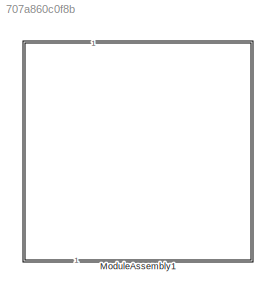
MODEL slx_707a860c0f8b
KIND library
CONFIG AbsTol = auto
CONFIG EnableMultiTasking = off
CONFIG FixedStep = auto
CONFIG MaxStep = auto
CONFIG MinStep = auto
CONFIG RelTol = 1e-3
CONFIG SampleTimeConstraint = Unconstrained
CONFIG SolverName = VariableStepAuto
CONFIG StartTime = 0.0
CONFIG StopTime = 10.0
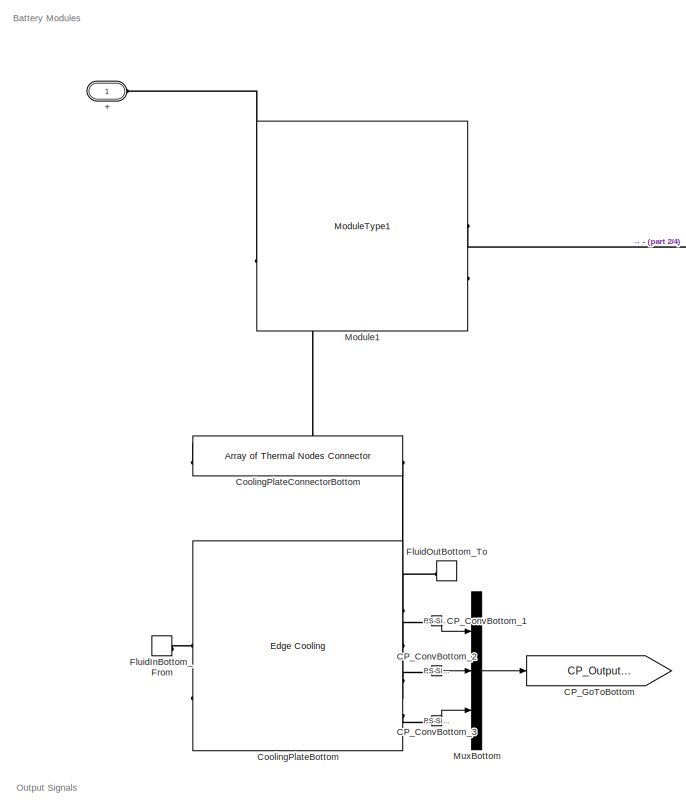
[diagram: ModuleAssembly1 - part 1/4, middle left region]
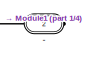
[diagram: ModuleAssembly1 - part 2/4, top right region]
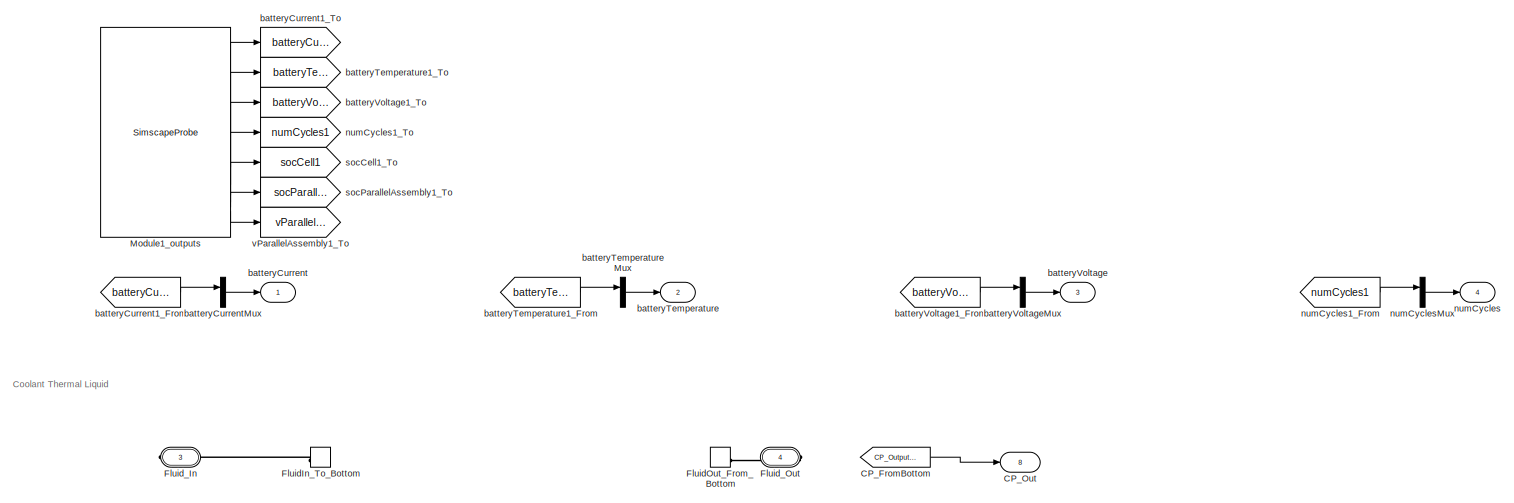
[diagram: ModuleAssembly1 - part 3/4, bottom left region]
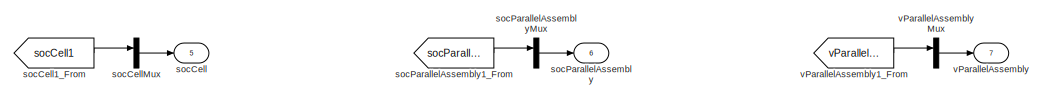
[diagram: ModuleAssembly1 - part 4/4, bottom right region]
BLOCK [SubSystem] ModuleAssembly1
  CopyFcn = battery_builder_rtmsupport('copyfcn',gcbh);
  LoadFcn = battery_builder_rtmsupport('loadfcn',gcbh);
  PortSchema = {"entries":[{"content":{"sides":[{"content":{"connectorIds":["LConn1"]},"type":"ConnectorPlacement.EquallySpacedRectSide","uuid":"5b9bd66e-6eb4-47f7-a339-4edb451c37cc"},{"content":{"connectorIds":["RConn1","RConn2","RConn3"],"side":"RIGHT"},"type":"ConnectorPlacement.EquallySpacedRectSide","uuid":"4e53519a-4f95-4811-a8d7-c955c8344f39"},{"content":{"side":"TOP"},"type":"ConnectorPlacement.EquallySp...<+444ch>
  PreCopyFcn = battery_builder_rtmsupport('precopyfcn',gcbh);
  PreDeleteFcn = battery_builder_rtmsupport('predeletefcn',gcbh);
BLOCK [PMIOPort] ModuleAssembly1/+
  Side = Left
BLOCK [PMIOPort] ModuleAssembly1/-
  Port = 2
  Side = Right
BLOCK [Reference] ModuleAssembly1/CP_ConvBottom_1  REF=nesl_utility/PS-Simulink
Converter
  SourceBlock = nesl_utility/PS-Simulink\nConverter
  SourceType = PS-Simulink\nConverter
BLOCK [Reference] ModuleAssembly1/CP_ConvBottom_2  REF=nesl_utility/PS-Simulink
Converter
  SourceBlock = nesl_utility/PS-Simulink\nConverter
  SourceType = PS-Simulink\nConverter
BLOCK [Reference] ModuleAssembly1/CP_ConvBottom_3  REF=nesl_utility/PS-Simulink
Converter
  SourceBlock = nesl_utility/PS-Simulink\nConverter
  SourceType = PS-Simulink\nConverter
BLOCK [From] ModuleAssembly1/CP_FromBottom
  GotoTag = CP_OutputsBottom
BLOCK [Goto] ModuleAssembly1/CP_GoToBottom
  GotoTag = CP_OutputsBottom
BLOCK [Outport] ModuleAssembly1/CP_Out
  Port = 8
BLOCK [Reference] ModuleAssembly1/CoolingPlateBottom  REF=batt_lib/Thermal/Edge Cooling
  SourceBlock = batt_lib/Thermal/Edge Cooling
  SourceType = Edge Cooling
BLOCK [Reference] ModuleAssembly1/CoolingPlateConnectorBottom  REF=batt_lib/Thermal/Array of Thermal
Nodes Connector
  SourceBlock = batt_lib/Thermal/Array of Thermal\nNodes Connector
  SourceType = Array of Thermal\nNodes Connector
BLOCK [ConnectionLabel] ModuleAssembly1/FluidInBottom_From
  Label = FluidIn_To_Bottom
BLOCK [ConnectionLabel] ModuleAssembly1/FluidIn_To_Bottom
  Label = FluidIn_To_Bottom
BLOCK [ConnectionLabel] ModuleAssembly1/FluidOutBottom_To
  Label = FluidOut_From_Bottom
BLOCK [ConnectionLabel] ModuleAssembly1/FluidOut_From_Bottom
  Label = FluidOut_From_Bottom
BLOCK [PMIOPort] ModuleAssembly1/Fluid_In
  ConnectionType = Connection: foundation.thermal_liquid.thermal_liquid
  Port = 3
  Side = Right
BLOCK [PMIOPort] ModuleAssembly1/Fluid_Out
  ConnectionType = Connection: foundation.thermal_liquid.thermal_liquid
  Port = 4
  Side = Right
BLOCK [Reference] ModuleAssembly1/Module1  REF=pouchPackExample_lib/Modules/ModuleType1
  SourceBlock = pouchPackExample_lib/Modules/ModuleType1
  SourceType = ModuleType1
BLOCK [SimscapeProbe] ModuleAssembly1/Module1_outputs
  BoundBlock = 2
  Variables = {"batteryCurrent":{"Unit":"A","PortLabel":"batteryCurrent","Probing":"ON"},"batteryTemperature":{"Unit":"K","PortLabel":"batteryTemperature","Probing":"ON"},"batteryVoltage":{"Unit":"V","PortLabel":"batteryVoltage","Probing":"ON"},"numCycles":{"Unit":"1","PortLabel":"numCycles","Probing":"ON"},"socCell":{"Unit":"1","PortLabel":"socCell","Probing":"ON"},"socParallelAssembly":{"Unit":"1","PortLabel"...<+119ch>
BLOCK [Mux] ModuleAssembly1/MuxBottom
  DisplayOption = bar
  Inputs = 3
BLOCK [Outport] ModuleAssembly1/batteryCurrent
BLOCK [From] ModuleAssembly1/batteryCurrent1_From
  GotoTag = batteryCurrent1
BLOCK [Goto] ModuleAssembly1/batteryCurrent1_To
  GotoTag = batteryCurrent1
BLOCK [Mux] ModuleAssembly1/batteryCurrentMux
  DisplayOption = bar
  Inputs = 1
BLOCK [Outport] ModuleAssembly1/batteryTemperature
  Port = 2
BLOCK [From] ModuleAssembly1/batteryTemperature1_From
  GotoTag = batteryTemperature1
BLOCK [Goto] ModuleAssembly1/batteryTemperature1_To
  GotoTag = batteryTemperature1
BLOCK [Mux] ModuleAssembly1/batteryTemperatureMux
  DisplayOption = bar
  Inputs = 1
BLOCK [Outport] ModuleAssembly1/batteryVoltage
  Port = 3
BLOCK [From] ModuleAssembly1/batteryVoltage1_From
  GotoTag = batteryVoltage1
BLOCK [Goto] ModuleAssembly1/batteryVoltage1_To
  GotoTag = batteryVoltage1
BLOCK [Mux] ModuleAssembly1/batteryVoltageMux
  DisplayOption = bar
  Inputs = 1
BLOCK [Outport] ModuleAssembly1/numCycles
  Port = 4
BLOCK [From] ModuleAssembly1/numCycles1_From
  GotoTag = numCycles1
BLOCK [Goto] ModuleAssembly1/numCycles1_To
  GotoTag = numCycles1
BLOCK [Mux] ModuleAssembly1/numCyclesMux
  DisplayOption = bar
  Inputs = 1
BLOCK [Outport] ModuleAssembly1/socCell
  Port = 5
BLOCK [From] ModuleAssembly1/socCell1_From
  GotoTag = socCell1
BLOCK [Goto] ModuleAssembly1/socCell1_To
  GotoTag = socCell1
BLOCK [Mux] ModuleAssembly1/socCellMux
  DisplayOption = bar
  Inputs = 1
BLOCK [Outport] ModuleAssembly1/socParallelAssembly
  Port = 6
BLOCK [From] ModuleAssembly1/socParallelAssembly1_From
  GotoTag = socParallelAssembly1
BLOCK [Goto] ModuleAssembly1/socParallelAssembly1_To
  GotoTag = socParallelAssembly1
BLOCK [Mux] ModuleAssembly1/socParallelAssemblyMux
  DisplayOption = bar
  Inputs = 1
BLOCK [Outport] ModuleAssembly1/vParallelAssembly
  Port = 7
BLOCK [From] ModuleAssembly1/vParallelAssembly1_From
  GotoTag = vParallelAssembly1
BLOCK [Goto] ModuleAssembly1/vParallelAssembly1_To
  GotoTag = vParallelAssembly1
BLOCK [Mux] ModuleAssembly1/vParallelAssemblyMux
  DisplayOption = bar
  Inputs = 1
ANNOTATION ModuleAssembly1: Battery Modules
ANNOTATION ModuleAssembly1: Coolant Thermal Liquid
ANNOTATION ModuleAssembly1: Output Signals
LINE ModuleAssembly1/CP_ConvBottom_1:1 -> ModuleAssembly1/MuxBottom:1
LINE ModuleAssembly1/CP_ConvBottom_2:1 -> ModuleAssembly1/MuxBottom:2
LINE ModuleAssembly1/CP_ConvBottom_3:1 -> ModuleAssembly1/MuxBottom:3
LINE ModuleAssembly1/CP_FromBottom:1 -> ModuleAssembly1/CP_Out:1
LINE ModuleAssembly1/Module1_outputs:1 -> ModuleAssembly1/batteryCurrent1_To:1
LINE ModuleAssembly1/Module1_outputs:2 -> ModuleAssembly1/batteryTemperature1_To:1
LINE ModuleAssembly1/Module1_outputs:3 -> ModuleAssembly1/batteryVoltage1_To:1
LINE ModuleAssembly1/Module1_outputs:4 -> ModuleAssembly1/numCycles1_To:1
LINE ModuleAssembly1/Module1_outputs:5 -> ModuleAssembly1/socCell1_To:1
LINE ModuleAssembly1/Module1_outputs:6 -> ModuleAssembly1/socParallelAssembly1_To:1
LINE ModuleAssembly1/Module1_outputs:7 -> ModuleAssembly1/vParallelAssembly1_To:1
LINE ModuleAssembly1/MuxBottom:1 -> ModuleAssembly1/CP_GoToBottom:1
LINE ModuleAssembly1/batteryCurrent1_From:1 -> ModuleAssembly1/batteryCurrentMux:1
LINE ModuleAssembly1/batteryCurrentMux:1 -> ModuleAssembly1/batteryCurrent:1
LINE ModuleAssembly1/batteryTemperature1_From:1 -> ModuleAssembly1/batteryTemperatureMux:1
LINE ModuleAssembly1/batteryTemperatureMux:1 -> ModuleAssembly1/batteryTemperature:1
LINE ModuleAssembly1/batteryVoltage1_From:1 -> ModuleAssembly1/batteryVoltageMux:1
LINE ModuleAssembly1/batteryVoltageMux:1 -> ModuleAssembly1/batteryVoltage:1
LINE ModuleAssembly1/numCycles1_From:1 -> ModuleAssembly1/numCyclesMux:1
LINE ModuleAssembly1/numCyclesMux:1 -> ModuleAssembly1/numCycles:1
LINE ModuleAssembly1/socCell1_From:1 -> ModuleAssembly1/socCellMux:1
LINE ModuleAssembly1/socCellMux:1 -> ModuleAssembly1/socCell:1
LINE ModuleAssembly1/socParallelAssembly1_From:1 -> ModuleAssembly1/socParallelAssemblyMux:1
LINE ModuleAssembly1/socParallelAssemblyMux:1 -> ModuleAssembly1/socParallelAssembly:1
LINE ModuleAssembly1/vParallelAssembly1_From:1 -> ModuleAssembly1/vParallelAssemblyMux:1
LINE ModuleAssembly1/vParallelAssemblyMux:1 -> ModuleAssembly1/vParallelAssembly:1
PLINE ModuleAssembly1/+:RConn1 -- ModuleAssembly1/Module1:LConn1
PLINE ModuleAssembly1/-:RConn1 -- ModuleAssembly1/Module1:RConn1
PLINE ModuleAssembly1/CP_ConvBottom_1:LConn1 -- ModuleAssembly1/CoolingPlateBottom:RConn2
PLINE ModuleAssembly1/CP_ConvBottom_2:LConn1 -- ModuleAssembly1/CoolingPlateBottom:RConn3
PLINE ModuleAssembly1/CP_ConvBottom_3:LConn1 -- ModuleAssembly1/CoolingPlateBottom:RConn4
PLINE ModuleAssembly1/CoolingPlateBottom:LConn1 -- ModuleAssembly1/FluidInBottom_From:LConn1
PLINE ModuleAssembly1/CoolingPlateBottom:LConn2 -- ModuleAssembly1/CoolingPlateConnectorBottom:RConn1
PLINE ModuleAssembly1/CoolingPlateBottom:RConn1 -- ModuleAssembly1/FluidOutBottom_To:LConn1
PLINE ModuleAssembly1/CoolingPlateConnectorBottom:LConn1 -- ModuleAssembly1/Module1:RConn2
PLINE ModuleAssembly1/FluidIn_To_Bottom:LConn1 -- ModuleAssembly1/Fluid_In:RConn1
PLINE ModuleAssembly1/FluidOut_From_Bottom:LConn1 -- ModuleAssembly1/Fluid_Out:RConn1
